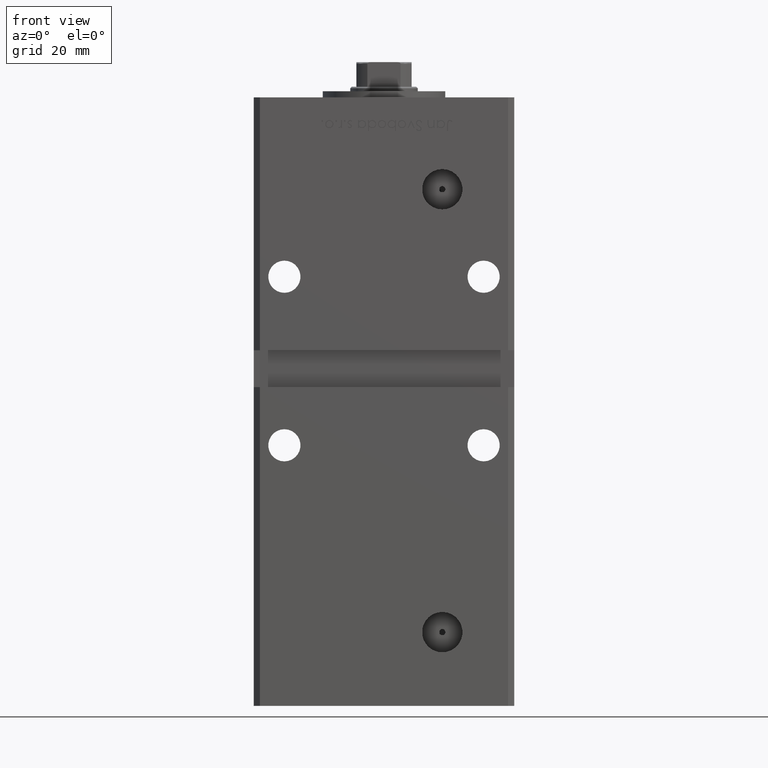
[diagram: clean part render]
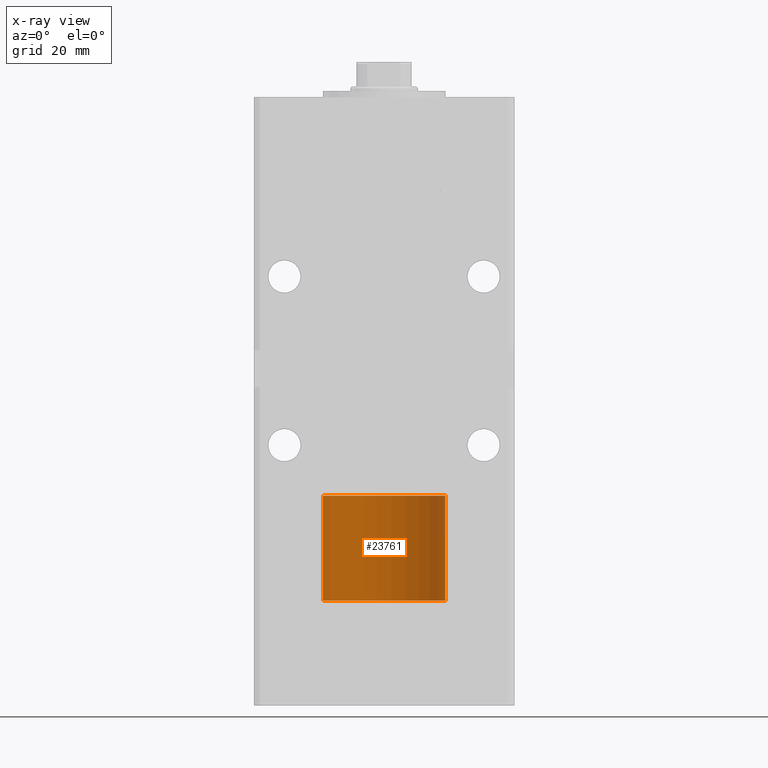
[diagram: x-ray — body ghosted, one internal face saturated and labeled with its STEP entity id]
A machine part, front view, then the same camera in x-ray: the body is ghosted and one INTERNAL B-rep face — a face not visible from any outside direction — is saturated and labeled: STEP entity #23761.
In plain terms, the highlighted cylindrical surface (partial cylindrical patch) has radius 20 mm, axis along (-0, -0, -1).
Its self-contained STEP definition (entity closure, byte-faithful):
#1986 = EDGE_CURVE ( 'NONE', #23447, #45583, #47202, .T. ) ;
#2783 = DIRECTION ( 'NONE',  ( 1.000000000000000000, 0.000000000000000000, 0.000000000000000000 ) ) ;
#3293 = CARTESIAN_POINT ( 'NONE',  ( -20.00000000000000000, 0.000000000000000000, 34.25000000000000000 ) ) ;
#4142 = DIRECTION ( 'NONE',  ( -0.000000000000000000, -0.000000000000000000, -1.000000000000000000 ) ) ;
#4790 = CARTESIAN_POINT ( 'NONE',  ( 0.000000000000000000, 0.000000000000000000, 34.25000000000000000 ) ) ;
#6208 = CARTESIAN_POINT ( 'NONE',  ( 20.00000000000000000, 2.449293598294706513E-15, 34.25000000000000000 ) ) ;
#7201 = CARTESIAN_POINT ( 'NONE',  ( -20.00000000000000000, 0.000000000000000000, 34.25000000000000000 ) ) ;
#11399 = DIRECTION ( 'NONE',  ( 0.000000000000000000, 0.000000000000000000, 1.000000000000000000 ) ) ;
#11781 = DIRECTION ( 'NONE',  ( -0.000000000000000000, -0.000000000000000000, -1.000000000000000000 ) ) ;
#11935 = CARTESIAN_POINT ( 'NONE',  ( 0.000000000000000000, 0.000000000000000000, 34.25000000000000000 ) ) ;
#14555 = ORIENTED_EDGE ( 'NONE', *, *, #52407, .F. ) ;
#14712 = ORIENTED_EDGE ( 'NONE', *, *, #1986, .T. ) ;
#15809 = LINE ( 'NONE', #7201, #40266 ) ;
#17862 = DIRECTION ( 'NONE',  ( 1.000000000000000000, 0.000000000000000000, 0.000000000000000000 ) ) ;
#20386 = CIRCLE ( 'NONE', #30637, 20.00000000000000000 ) ;
#20431 = FACE_OUTER_BOUND ( 'NONE', #43061, .T. ) ;
#23447 = VERTEX_POINT ( 'NONE', #28802 ) ;
#23465 = ORIENTED_EDGE ( 'NONE', *, *, #42328, .F. ) ;
#23761 = ADVANCED_FACE ( 'NONE', ( #20431 ), #45408, .T. ) ;
#25729 = AXIS2_PLACEMENT_3D ( 'NONE', #30725, #38266, #17862 ) ;
#26213 = ORIENTED_EDGE ( 'NONE', *, *, #37267, .T. ) ;
#28802 = CARTESIAN_POINT ( 'NONE',  ( 20.00000000000000000, 2.449293598294706513E-15, 0.000000000000000000 ) ) ;
#29003 = DIRECTION ( 'NONE',  ( -0.000000000000000000, -0.000000000000000000, -1.000000000000000000 ) ) ;
#29564 = AXIS2_PLACEMENT_3D ( 'NONE', #4790, #29003, #33288 ) ;
#30637 = AXIS2_PLACEMENT_3D ( 'NONE', #11935, #11399, #2783 ) ;
#30725 = CARTESIAN_POINT ( 'NONE',  ( 0.000000000000000000, 0.000000000000000000, 0.000000000000000000 ) ) ;
#32645 = LINE ( 'NONE', #49074, #47733 ) ;
#33288 = DIRECTION ( 'NONE',  ( -1.000000000000000000, 0.000000000000000000, 0.000000000000000000 ) ) ;
#37267 = EDGE_CURVE ( 'NONE', #49083, #23447, #32645, .T. ) ;
#38266 = DIRECTION ( 'NONE',  ( 0.000000000000000000, 0.000000000000000000, 1.000000000000000000 ) ) ;
#38508 = VERTEX_POINT ( 'NONE', #3293 ) ;
#40266 = VECTOR ( 'NONE', #11781, 1000.000000000000000 ) ;
#42328 = EDGE_CURVE ( 'NONE', #49083, #38508, #20386, .T. ) ;
#43061 = EDGE_LOOP ( 'NONE', ( #23465, #26213, #14712, #14555 ) ) ;
#45408 = CYLINDRICAL_SURFACE ( 'NONE', #29564, 20.00000000000000000 ) ;
#45583 = VERTEX_POINT ( 'NONE', #45618 ) ;
#45618 = CARTESIAN_POINT ( 'NONE',  ( -20.00000000000000000, 0.000000000000000000, 0.000000000000000000 ) ) ;
#47202 = CIRCLE ( 'NONE', #25729, 20.00000000000000000 ) ;
#47733 = VECTOR ( 'NONE', #4142, 1000.000000000000000 ) ;
#49074 = CARTESIAN_POINT ( 'NONE',  ( 20.00000000000000000, 2.449293598294706513E-15, 34.25000000000000000 ) ) ;
#49083 = VERTEX_POINT ( 'NONE', #6208 ) ;
#52407 = EDGE_CURVE ( 'NONE', #38508, #45583, #15809, .T. ) ;